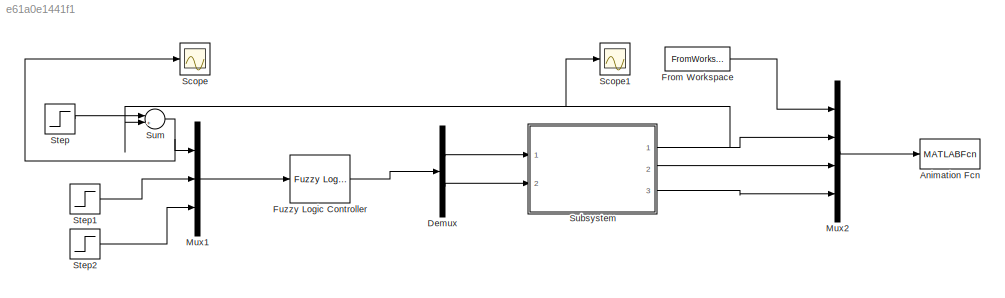
MODEL slx_e61a0e1441f1
KIND model
BLOCK [MATLABFcn] Animation Fcn
  MATLABFcn = viewMap(u)
  OutputDimensions = 0
  Ports = [1]
  SampleTime = 0.01
BLOCK [Demux] Demux
  DisplayOption = bar
  Outputs = 2
  Ports = [1, 2]
BLOCK [FromWorkspace] From Workspace
  SampleTime = 0
  VariableName = map
  ZeroCross = on
BLOCK [Reference] Fuzzy Logic Controller  REF=fuzblock/Fuzzy Logic   (lib defined in mdl_858b3b3e7478)
Controller
  Ports = [1, 1]
  SourceBlock = fuzblock/Fuzzy Logic \nController
  SourceType = FIS
  fis = fuzcar
BLOCK [Mux] Mux1
  DisplayOption = bar
  Inputs = 3
  Ports = [3, 1]
BLOCK [Mux] Mux2
  DisplayOption = bar
  Ports = [4, 1]
BLOCK [Scope] Scope
  DataFormat = StructureWithTime
  Floating = off
  NumInputPorts = 1
  Ports = [1]
  SampleTime = 0
  ShowLegends = off
BLOCK [Scope] Scope1
  DataFormat = StructureWithTime
  Floating = off
  NumInputPorts = 1
  Ports = [1]
  SampleTime = 0
  SaveName = ScopeData1
  ShowLegends = off
BLOCK [Step] Step
  After = 0
  Before = 5
  SampleTime = 0
  Time = 0
BLOCK [Step] Step1
  After = 0.5
  SampleTime = 0
  Time = 0
BLOCK [Step] Step2
  After = 0.5
  SampleTime = 0
  Time = 0
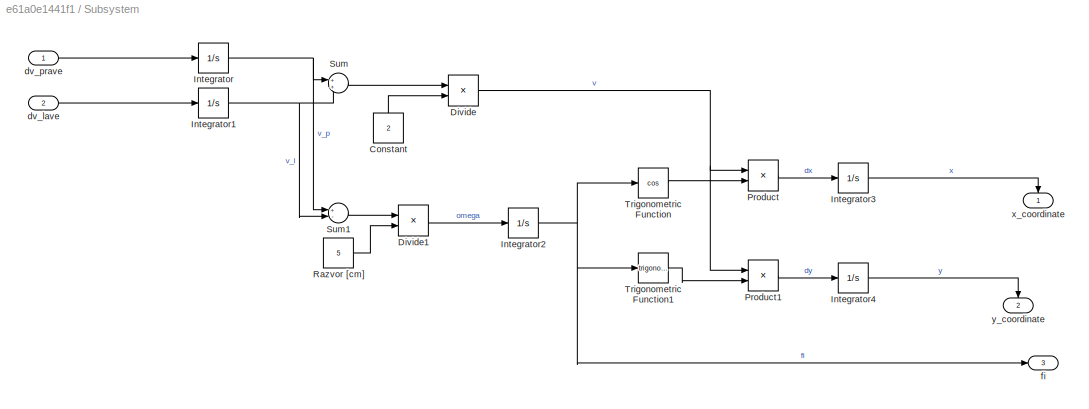
BLOCK [SubSystem] Subsystem
  FunctionWithSeparateData = off
  MaskHideContents = off
  MinAlgLoopOccurrences = off
  Opaque = off
  Ports = [2, 3]
  PropExecContextOutsideSubsystem = off
  RTWSystemCode = Auto
  RequestExecContextInheritance = off
BLOCK [Constant] Subsystem/Constant
  Value = 2
BLOCK [Product] Subsystem/Divide
  InputSameDT = off
  Inputs = */
  OutDataTypeStr = Inherit: Inherit via internal rule
  Ports = [2, 1]
  RndMeth = Floor
  SaturateOnIntegerOverflow = off
BLOCK [Product] Subsystem/Divide1
  InputSameDT = off
  Inputs = */
  OutDataTypeStr = Inherit: Inherit via internal rule
  Ports = [2, 1]
  RndMeth = Floor
  SaturateOnIntegerOverflow = off
BLOCK [Integrator] Subsystem/Integrator
  Ports = [1, 1]
BLOCK [Integrator] Subsystem/Integrator1
  Ports = [1, 1]
BLOCK [Integrator] Subsystem/Integrator2
  InitialCondition = 45
  Ports = [1, 1]
BLOCK [Integrator] Subsystem/Integrator3
  InitialCondition = 10
  Ports = [1, 1]
BLOCK [Integrator] Subsystem/Integrator4
  InitialCondition = 10
  Ports = [1, 1]
BLOCK [Product] Subsystem/Product
  InputSameDT = off
  OutDataTypeStr = Inherit: Inherit via internal rule
  Ports = [2, 1]
  RndMeth = Floor
  SaturateOnIntegerOverflow = off
BLOCK [Product] Subsystem/Product1
  InputSameDT = off
  OutDataTypeStr = Inherit: Inherit via internal rule
  Ports = [2, 1]
  RndMeth = Floor
  SaturateOnIntegerOverflow = off
BLOCK [Constant] Subsystem/Razvor [cm]
  Value = 5
BLOCK [Sum] Subsystem/Sum
  IconShape = round
  InputSameDT = off
  OutDataTypeStr = Inherit: Inherit via internal rule
  Ports = [2, 1]
  SaturateOnIntegerOverflow = off
BLOCK [Sum] Subsystem/Sum1
  InputSameDT = off
  Inputs = +-
  OutDataTypeStr = Inherit: Inherit via internal rule
  Ports = [2, 1]
  SaturateOnIntegerOverflow = off
BLOCK [Trigonometry] Subsystem/Trigonometric Function
  Operator = cos
  Ports = [1, 1]
BLOCK [Trigonometry] Subsystem/Trigonometric Function1
  Ports = [1, 1]
BLOCK [Inport] Subsystem/dv_lave
  IconDisplay = Port number
  Port = 2
BLOCK [Inport] Subsystem/dv_prave
  IconDisplay = Port number
BLOCK [Outport] Subsystem/fi 
  IconDisplay = Port number
  Port = 3
BLOCK [Outport] Subsystem/x_coordinate
  IconDisplay = Port number
BLOCK [Outport] Subsystem/y_coordinate
  IconDisplay = Port number
  Port = 2
BLOCK [Sum] Sum
  IconShape = round
  InputSameDT = off
  Inputs = |+-
  OutDataTypeStr = Inherit: Inherit via internal rule
  Ports = [2, 1]
  SaturateOnIntegerOverflow = off
LINE Demux:1 -> Subsystem:1
LINE Demux:2 -> Subsystem:2
LINE From Workspace:1 -> Mux2:1
LINE Fuzzy Logic Controller:1 -> Demux:1
LINE Mux1:1 -> Fuzzy Logic Controller:1
LINE Mux2:1 -> Animation Fcn:1
LINE Step1:1 -> Mux1:2
LINE Step2:1 -> Mux1:3
LINE Step:1 -> Sum:1
LINE Subsystem/Constant:1 -> Subsystem/Divide:2
LINE Subsystem/Divide1:1 -> Subsystem/Integrator2:1
NET Subsystem/Divide:1 -> Subsystem/Product1:1, Subsystem/Product:1
NET Subsystem/Integrator1:1 -> Subsystem/Sum1:2, Subsystem/Sum:2
NET Subsystem/Integrator2:1 -> Subsystem/Trigonometric Function1:1, Subsystem/Trigonometric Function:1, Subsystem/fi :1
LINE Subsystem/Integrator3:1 -> Subsystem/x_coordinate:1
LINE Subsystem/Integrator4:1 -> Subsystem/y_coordinate:1
NET Subsystem/Integrator:1 -> Subsystem/Sum1:1, Subsystem/Sum:1
LINE Subsystem/Product1:1 -> Subsystem/Integrator4:1
LINE Subsystem/Product:1 -> Subsystem/Integrator3:1
LINE Subsystem/Razvor [cm]:1 -> Subsystem/Divide1:2
LINE Subsystem/Sum1:1 -> Subsystem/Divide1:1
LINE Subsystem/Sum:1 -> Subsystem/Divide:1
LINE Subsystem/Trigonometric Function1:1 -> Subsystem/Product1:2
LINE Subsystem/Trigonometric Function:1 -> Subsystem/Product:2
LINE Subsystem/dv_lave:1 -> Subsystem/Integrator1:1
LINE Subsystem/dv_prave:1 -> Subsystem/Integrator:1
NET Subsystem:1 -> Mux2:2, Scope1:1, Sum:2
LINE Subsystem:2 -> Mux2:3
LINE Subsystem:3 -> Mux2:4
NET Sum:1 -> Mux1:1, Scope:1
note: NET lines group one-source signal fan-out (src -> all destinations, sorted); 1:1 wires keep LINE
